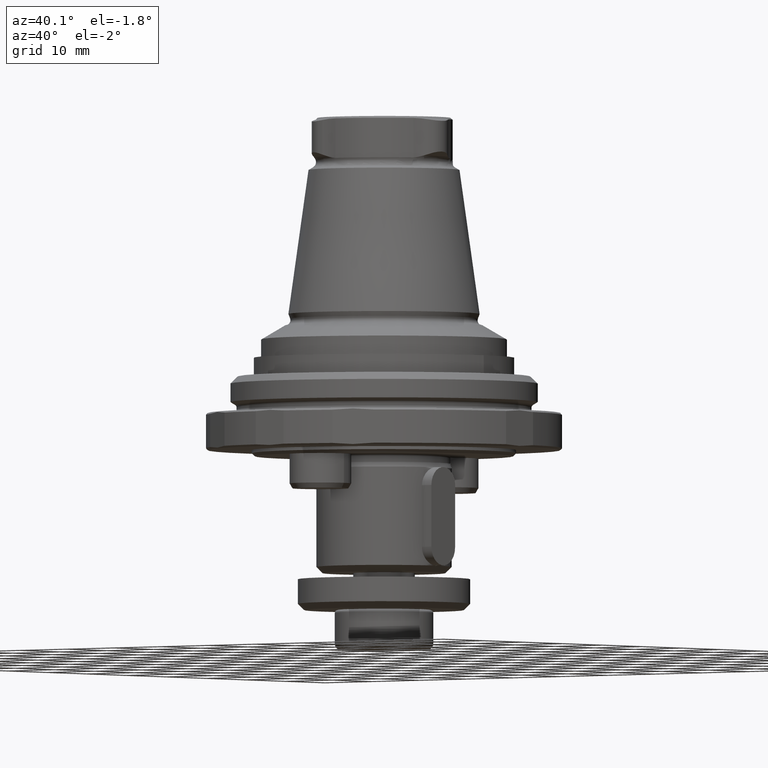
[diagram: clean part render]
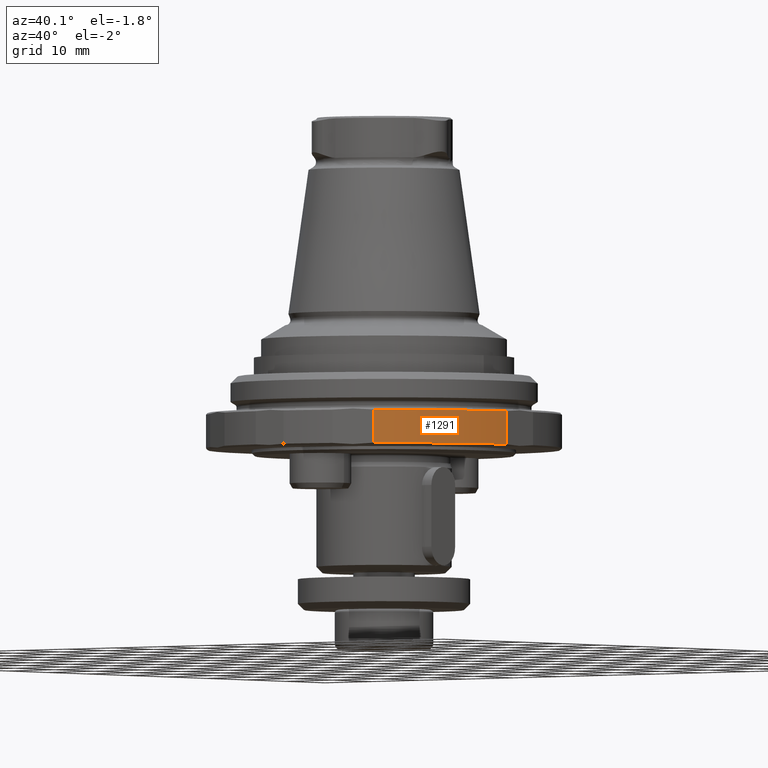
[diagram: same view with one face highlighted and labeled with its STEP entity id]
A machine part, auxiliary view. The second image highlights one B-rep face of the part: STEP entity #1291.
In plain terms, the highlighted cylindrical surface (partial cylindrical patch) has radius 29 mm, axis along (0, 0, -1).
Its self-contained STEP definition (entity closure, byte-faithful):
#98=LINE('',#2355,#139);
#99=LINE('',#2359,#140);
#139=VECTOR('',#1826,1000.);
#140=VECTOR('',#1831,1000.);
#476=ORIENTED_EDGE('',*,*,#687,.F.);
#477=ORIENTED_EDGE('',*,*,#688,.T.);
#478=ORIENTED_EDGE('',*,*,#664,.T.);
#479=ORIENTED_EDGE('',*,*,#686,.T.);
#664=EDGE_CURVE('',#804,#803,#894,.T.);
#686=EDGE_CURVE('',#803,#816,#98,.T.);
#687=EDGE_CURVE('',#817,#816,#900,.T.);
#688=EDGE_CURVE('',#817,#804,#99,.F.);
#803=VERTEX_POINT('',#2289);
#804=VERTEX_POINT('',#2291);
#816=VERTEX_POINT('',#2354);
#817=VERTEX_POINT('',#2358);
#894=CIRCLE('',#1453,29.);
#900=CIRCLE('',#1469,29.);
#1023=EDGE_LOOP('',(#476,#477,#478,#479));
#1158=FACE_BOUND('',#1023,.T.);
#1210=CYLINDRICAL_SURFACE('',#1468,29.);
#1291=ADVANCED_FACE('',(#1158),#1210,.T.);
#1453=AXIS2_PLACEMENT_3D('',#2290,#1787,#1788);
#1468=AXIS2_PLACEMENT_3D('',#2356,#1827,#1828);
#1469=AXIS2_PLACEMENT_3D('',#2357,#1829,#1830);
#1787=DIRECTION('',(1.22464605849178E-16,1.04225259501902E-17,-1.));
#1788=DIRECTION('',(-1.,-5.54667823983524E-32,-1.22464605849178E-16));
#1826=DIRECTION('',(1.22464605849178E-16,1.04225259501902E-17,-1.));
#1827=DIRECTION('',(1.22464605849178E-16,1.04225259501902E-17,-1.));
#1828=DIRECTION('',(-1.,-5.54667823983524E-32,-1.22464605849178E-16));
#1829=DIRECTION('',(1.22464605849178E-16,1.04225259501902E-17,-1.));
#1830=DIRECTION('',(-1.,-5.54667823983524E-32,-1.22464605849178E-16));
#1831=DIRECTION('',(1.22464605849178E-16,1.04225259501902E-17,-1.));
#2289=CARTESIAN_POINT('',(17.3444863728671,-23.2415316289918,-1.30000000000002));
#2290=CARTESIAN_POINT('',(5.53668419773026E-15,9.692949133677E-17,-1.30000000000002));
#2291=CARTESIAN_POINT('',(28.8,-3.39999999999998,-1.30000000000001));
#2354=CARTESIAN_POINT('',(17.3444863728671,-23.2415316289918,-6.70000000000002));
#2355=CARTESIAN_POINT('',(17.3444863728671,-23.2415316289918,-1.00000000000002));
#2356=CARTESIAN_POINT('',(5.4999448159755E-15,9.38027335517129E-17,-1.00000000000002));
#2357=CARTESIAN_POINT('',(6.19799306931582E-15,1.53211131467797E-16,-6.70000000000002));
#2358=CARTESIAN_POINT('',(28.8,-3.39999999999998,-6.70000000000001));
#2359=CARTESIAN_POINT('',(28.8,-3.39999999999998,-1.00000000000001));